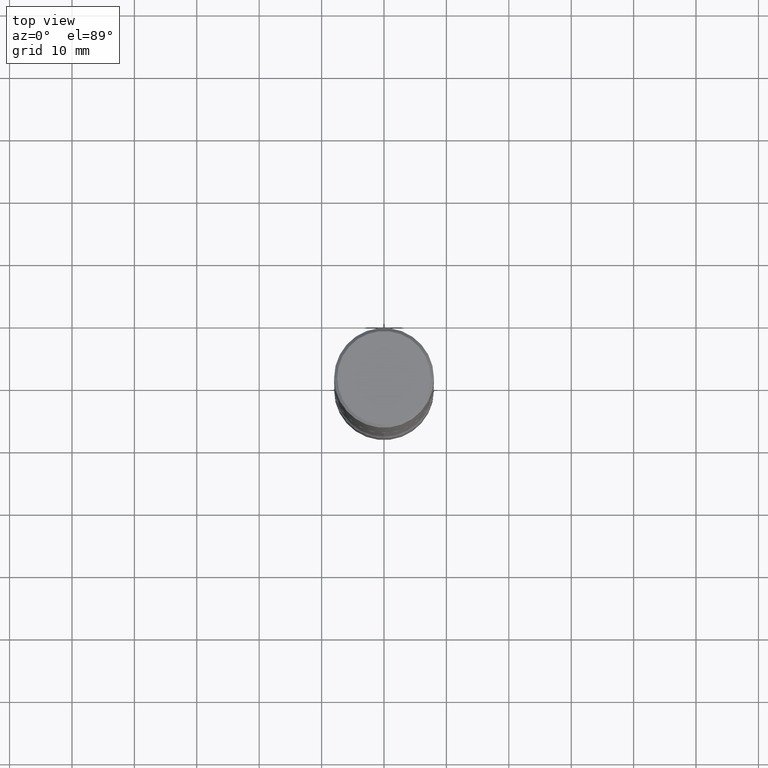
[diagram: clean part render]
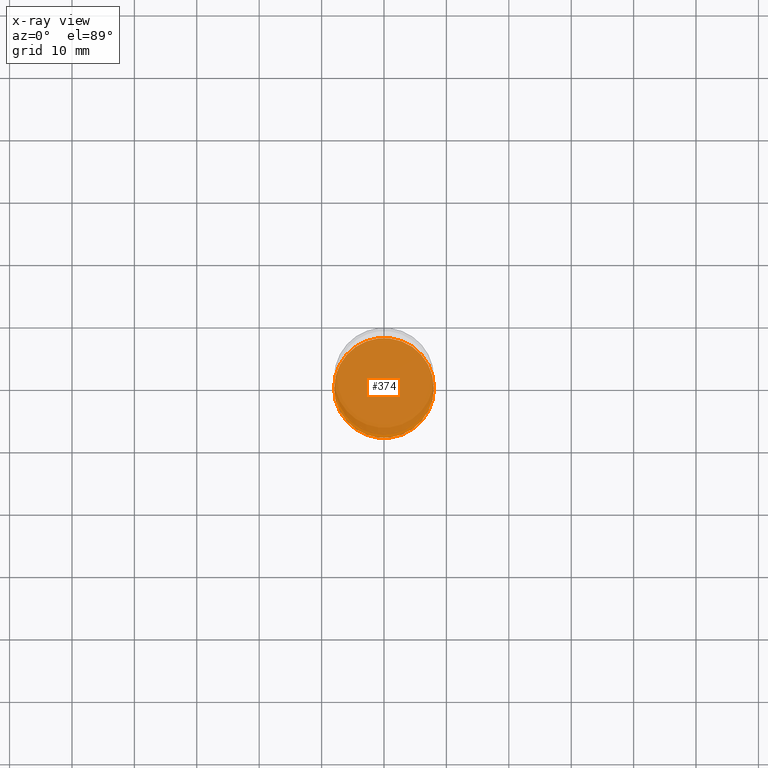
[diagram: x-ray — body ghosted, one internal face saturated and labeled with its STEP entity id]
A machine part, top view, then the same camera in x-ray: the body is ghosted and one INTERNAL B-rep face — a face not visible from any outside direction — is saturated and labeled: STEP entity #374.
In plain terms, the highlighted planar face has unit normal (0, -0, -1).
Its self-contained STEP definition (entity closure, byte-faithful):
#18 = AXIS2_PLACEMENT_3D ( 'NONE', #327, #142, #297 ) ;
#31 = DIRECTION ( 'NONE',  ( 1.000000000000000000, -6.982962677686264344E-15, 0.000000000000000000 ) ) ;
#34 = AXIS2_PLACEMENT_3D ( 'NONE', #467, #299, #251 ) ;
#63 = VERTEX_POINT ( 'NONE', #335 ) ;
#87 = EDGE_CURVE ( 'NONE', #92, #63, #179, .T. ) ;
#92 = VERTEX_POINT ( 'NONE', #214 ) ;
#142 = DIRECTION ( 'NONE',  ( 2.438088387897960049E-29, -3.491481338843145188E-15, -1.000000000000000000 ) ) ;
#146 = FACE_OUTER_BOUND ( 'NONE', #406, .T. ) ;
#179 = CIRCLE ( 'NONE', #34, 0.3149500000000002298 ) ;
#195 = CARTESIAN_POINT ( 'NONE',  ( 9.146542428893650504E-29, -1.305883850354113594E-14, -3.740200000000000635 ) ) ;
#214 = CARTESIAN_POINT ( 'NONE',  ( -0.3149500000000002298, -1.212679817799203354E-14, -3.740200000000000635 ) ) ;
#238 = EDGE_CURVE ( 'NONE', #63, #92, #460, .T. ) ;
#251 = DIRECTION ( 'NONE',  ( 1.000000000000000000, -6.982962677686264344E-15, 0.000000000000000000 ) ) ;
#297 = DIRECTION ( 'NONE',  ( -1.000000000000000000, 6.982962677686265922E-15, -4.876176775795935793E-29 ) ) ;
#299 = DIRECTION ( 'NONE',  ( -2.445468806185136597E-29, 3.491481338843145583E-15, 1.000000000000000000 ) ) ;
#327 = CARTESIAN_POINT ( 'NONE',  ( 4.615694768568605168E-29, -1.954727023296045315E-14, -3.740200000000000635 ) ) ;
#330 = AXIS2_PLACEMENT_3D ( 'NONE', #195, #506, #31 ) ;
#335 = CARTESIAN_POINT ( 'NONE',  ( 0.3149500000000002298, -1.525812259887842581E-14, -3.740200000000000635 ) ) ;
#374 = ADVANCED_FACE ( 'NONE', ( #146 ), #453, .F. ) ;
#406 = EDGE_LOOP ( 'NONE', ( #493, #446 ) ) ;
#446 = ORIENTED_EDGE ( 'NONE', *, *, #87, .T. ) ;
#453 = PLANE ( 'NONE',  #18 ) ;
#460 = CIRCLE ( 'NONE', #330, 0.3149500000000002298 ) ;
#467 = CARTESIAN_POINT ( 'NONE',  ( 9.146542428893650504E-29, -1.305883850354113594E-14, -3.740200000000000635 ) ) ;
#493 = ORIENTED_EDGE ( 'NONE', *, *, #238, .T. ) ;
#506 = DIRECTION ( 'NONE',  ( -2.445468806185136597E-29, 3.491481338843145583E-15, 1.000000000000000000 ) ) ;